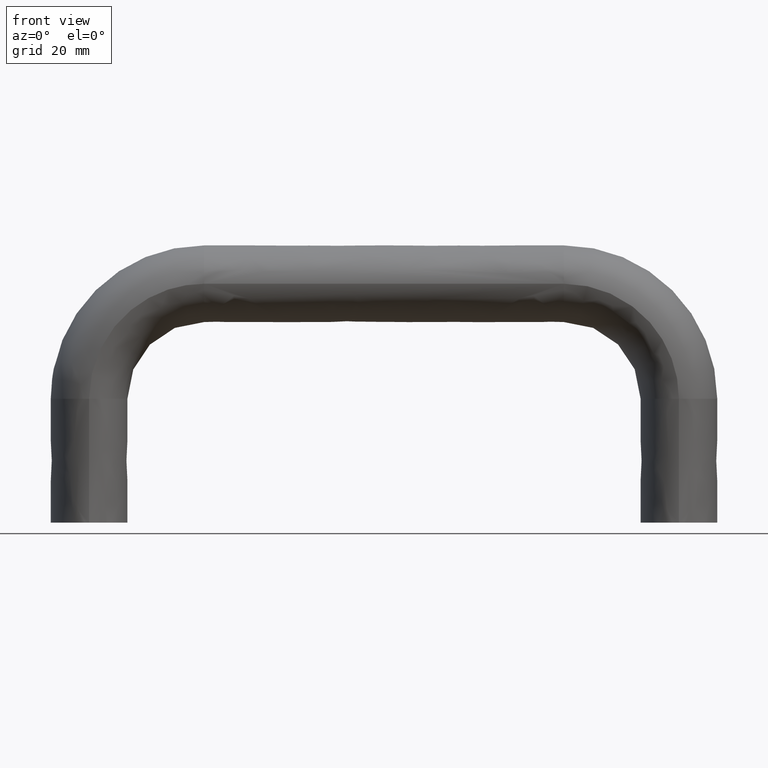
[diagram: clean part render]
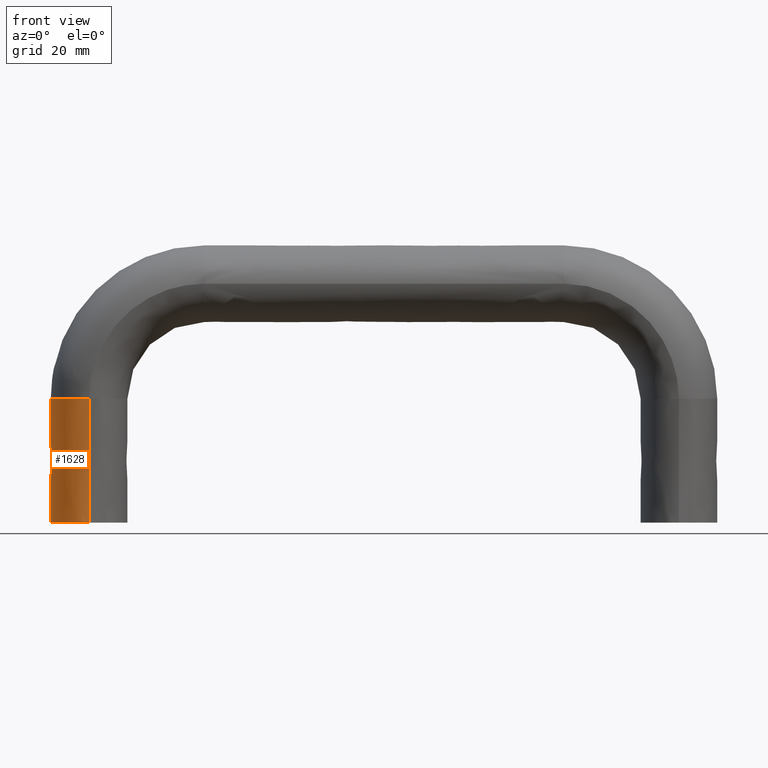
[diagram: same view with one face highlighted and labeled with its STEP entity id]
A machine part, front view. The second image highlights one B-rep face of the part: STEP entity #1628.
In plain terms, the highlighted face is a freeform B-spline surface patch.
Its self-contained STEP definition (entity closure, byte-faithful):
#1406=CARTESIAN_POINT('',(-2.765134615307078,9.039509780698346,21.0));
#1407=VERTEX_POINT('',#1406);
#1415=CARTESIAN_POINT('',(3.747003E-014,-10.0,21.0));
#1416=VERTEX_POINT('',#1415);
#1417=CARTESIAN_POINT('',(-2.765134615307078,9.039509780698346,21.0));
#1418=CARTESIAN_POINT('',(-3.442838944197289,8.550386504931613,21.0));
#1419=CARTESIAN_POINT('',(-4.066750231072831,7.885599694327763,21.0));
#1420=CARTESIAN_POINT('',(-5.799477550144460,5.219866587632820,21.0));
#1421=CARTESIAN_POINT('',(-6.500003000000000,2.617993877991495,21.0));
#1422=CARTESIAN_POINT('',(-6.500003000000000,-2.617993877991495,21.0));
#1423=CARTESIAN_POINT('',(-5.799477550144460,-5.219866587632820,21.0));
#1424=CARTESIAN_POINT('',(-3.392914847921290,-8.922269036098131,21.0));
#1425=CARTESIAN_POINT('',(-1.701696806092625,-10.0,21.0));
#1426=CARTESIAN_POINT('',(0.0,-10.0,21.0));
#1427=B_SPLINE_CURVE_WITH_KNOTS('',3,(#1417,#1418,#1419,#1420,#1421,#1422,#1423,#1424,#1425,#1426),.UNSPECIFIED.,.F.,.U.,(4,2,2,2,4),(0.569999774214178,0.625000000000000,0.750000000000000,0.875000000000000,1.0),.UNSPECIFIED.);
#1428=EDGE_CURVE('',#1407,#1416,#1427,.T.);
#1548=CARTESIAN_POINT('',(-2.685658718488288,9.096870563732853,-0.105000001123984));
#1549=CARTESIAN_POINT('',(-3.393906702951858,8.602100189284771,-0.105000001122971));
#1550=CARTESIAN_POINT('',(-4.046054131709490,7.917441528971149,-0.105000001122064));
#1551=CARTESIAN_POINT('',(-5.799477546771510,5.219866576458202,-0.105000001119699));
#1552=CARTESIAN_POINT('',(-6.500003000000000,2.617993877991495,-0.105000001118792));
#1553=CARTESIAN_POINT('',(-6.500003000000000,-2.617993877991495,-0.105000001118792));
#1554=CARTESIAN_POINT('',(-5.799477550131515,-5.219866585683334,-0.105000001119699));
#1555=CARTESIAN_POINT('',(-3.372218400263375,-8.954109990528842,-0.105000001122973));
#1556=CARTESIAN_POINT('',(-1.643374406696835,-10.036828661669180,-0.105000001125440));
#1557=CARTESIAN_POINT('',(0.087807599338033,-10.0,-0.105000001128085));
#1558=CARTESIAN_POINT('',(-2.685657754870958,9.096870563732857,6.965000230944530));
#1559=CARTESIAN_POINT('',(-3.393905724676816,8.602100189284773,6.965000230875034));
#1560=CARTESIAN_POINT('',(-4.046053140633730,7.917441528971152,6.965000230812847));
#1561=CARTESIAN_POINT('',(-5.799476523060093,5.219866576458202,6.965000230650642));
#1562=CARTESIAN_POINT('',(-6.500001964140381,2.617993877991495,6.965000230588506));
#1563=CARTESIAN_POINT('',(-6.500001964140381,-2.617993877991495,6.965000230588506));
#1564=CARTESIAN_POINT('',(-5.799476526420097,-5.219866585683334,6.965000230650642));
#1565=CARTESIAN_POINT('',(-3.372217421729414,-8.954109990528846,6.965000230875180));
#1566=CARTESIAN_POINT('',(-1.643373463620234,-10.036828661669190,6.965000231044331));
#1567=CARTESIAN_POINT('',(0.087808501942141,-10.0,6.965000231225739));
#1568=CARTESIAN_POINT('',(-2.685755572819079,9.096870563732853,14.035000470715319));
#1569=CARTESIAN_POINT('',(-3.394005030546780,8.602100189284773,14.035000470807329));
#1570=CARTESIAN_POINT('',(-4.046153745919988,7.917441528971149,14.035000470889660));
#1571=CARTESIAN_POINT('',(-5.799580441231025,5.219866576458202,14.035000471104400));
#1572=CARTESIAN_POINT('',(-6.500107115489507,2.617993877991495,14.035000471186640));
#1573=CARTESIAN_POINT('',(-6.500107115489507,-2.617993877991495,14.035000471186640));
#1574=CARTESIAN_POINT('',(-5.799580444591039,-5.219866585683334,14.035000471104400));
#1575=CARTESIAN_POINT('',(-3.372316753882761,-8.954109990528846,14.035000470807130));
#1576=CARTESIAN_POINT('',(-1.643469196454362,-10.036828661669180,14.035000470583199));
#1577=CARTESIAN_POINT('',(0.087716877519140,-10.0,14.035000470343020));
#1578=CARTESIAN_POINT('',(-2.685657287309563,9.096870563732853,21.105000702025439));
#1579=CARTESIAN_POINT('',(-3.393905250003284,8.602100189284771,21.105000702024089));
#1580=CARTESIAN_POINT('',(-4.046052659749096,7.917441528971149,21.105000702022881));
#1581=CARTESIAN_POINT('',(-5.799476026340157,5.219866576458202,21.105000702019730));
#1582=CARTESIAN_POINT('',(-6.500001461525961,2.617993877991495,21.105000702018529));
#1583=CARTESIAN_POINT('',(-6.500001461525961,-2.617993877991495,21.105000702018529));
#1584=CARTESIAN_POINT('',(-5.799476029700161,-5.219866585683334,21.105000702019730));
#1585=CARTESIAN_POINT('',(-3.372216946930247,-8.954109990528842,21.105000702024100));
#1586=CARTESIAN_POINT('',(-1.643373006025505,-10.036828661669180,21.105000702027379));
#1587=CARTESIAN_POINT('',(0.087808939899018,-10.0,21.105000702030900));
#1588=B_SPLINE_SURFACE_WITH_KNOTS('',3,3,((#1548,#1558,#1568,#1578),(#1549,#1559,#1569,#1579),(#1550,#1560,#1570,#1580),(#1551,#1561,#1571,#1581),(#1552,#1562,#1572,#1582),(#1553,#1563,#1573,#1583),(#1554,#1564,#1574,#1584),(#1555,#1565,#1575,#1585),(#1556,#1566,#1576,#1586),(#1557,#1567,#1577,#1587)),.UNSPECIFIED.,.F.,.F.,.U.,(4,2,2,2,4),(4,4),(0.0,3.517538023976559,11.211160203695609,18.904782383414659,26.730734931151531),(0.0,21.210000706909369),.UNSPECIFIED.);
#1589=ORIENTED_EDGE('',*,*,#1428,.F.);
#1590=CARTESIAN_POINT('',(-2.767720169434254,9.043070627223081,0.0));
#1591=VERTEX_POINT('',#1590);
#1592=CARTESIAN_POINT('',(-2.767720169434254,9.043070627223081,0.0));
#1593=CARTESIAN_POINT('',(-2.766858318058806,9.041883678381884,6.999999997749386));
#1594=CARTESIAN_POINT('',(-2.766092040285579,9.040696729539416,14.000000002996630));
#1595=CARTESIAN_POINT('',(-2.765134615307078,9.039509780698346,21.0));
#1596=B_SPLINE_CURVE_WITH_KNOTS('',3,(#1592,#1593,#1594,#1595),.UNSPECIFIED.,.F.,.U.,(4,4),(0.0,0.127845269726248),.UNSPECIFIED.);
#1597=EDGE_CURVE('',#1591,#1407,#1596,.T.);
#1598=ORIENTED_EDGE('',*,*,#1597,.F.);
#1599=CARTESIAN_POINT('',(3.252607E-016,-10.0,0.0));
#1600=VERTEX_POINT('',#1599);
#1601=CARTESIAN_POINT('',(-2.767720169434254,9.043070627223081,0.0));
#1602=CARTESIAN_POINT('',(-3.789576408237041,8.304902884629712,0.0));
#1603=CARTESIAN_POINT('',(-4.593845578071663,7.067814538810093,0.0));
#1604=CARTESIAN_POINT('',(-5.508530793873169,5.660889515444810,0.0));
#1605=CARTESIAN_POINT('',(-6.003271840199859,3.824138428760918,0.0));
#1606=CARTESIAN_POINT('',(-6.498386111927555,1.986001723952242,0.0));
#1607=CARTESIAN_POINT('',(-6.498552654300580,-0.002007286867018,0.0));
#1608=CARTESIAN_POINT('',(-6.498719322310736,-1.991516022564597,0.0));
#1609=CARTESIAN_POINT('',(-6.004286006158745,-3.828126606966662,0.0));
#1610=CARTESIAN_POINT('',(-5.509479696755824,-5.666122703489815,0.0));
#1611=CARTESIAN_POINT('',(-4.595719512415627,-7.071727548910881,0.0));
#1612=CARTESIAN_POINT('',(-3.681270000768123,-8.478392762051858,0.0));
#1613=CARTESIAN_POINT('',(-2.487294653056555,-9.239001272604334,0.0));
#1614=CARTESIAN_POINT('',(-1.292964819976039,-9.999835604057592,0.0));
#1615=CARTESIAN_POINT('',(3.252607E-016,-10.0,0.0));
#1616=B_SPLINE_CURVE_WITH_KNOTS('',2,(#1601,#1602,#1603,#1604,#1605,#1606,#1607,#1608,#1609,#1610,#1611,#1612,#1613,#1614,#1615),.UNSPECIFIED.,.F.,.U.,(3,2,2,2,2,2,2,3),(0.140006435435435,0.250000000000000,0.375000000000000,0.500000000000000,0.625000000000000,0.750000000000000,0.875000000000000,1.0),.UNSPECIFIED.);
#1617=EDGE_CURVE('',#1591,#1600,#1616,.T.);
#1618=ORIENTED_EDGE('',*,*,#1617,.T.);
#1619=CARTESIAN_POINT('',(0.0,-10.0,0.0));
#1620=CARTESIAN_POINT('',(0.0,-10.0,6.999999998021430));
#1621=CARTESIAN_POINT('',(-0.000089572575352,-10.0,14.000000002634399));
#1622=CARTESIAN_POINT('',(0.0,-10.0,21.0));
#1623=B_SPLINE_CURVE_WITH_KNOTS('',3,(#1619,#1620,#1621,#1622),.UNSPECIFIED.,.F.,.U.,(4,4),(0.0,0.127845269726248),.UNSPECIFIED.);
#1624=EDGE_CURVE('',#1600,#1416,#1623,.T.);
#1625=ORIENTED_EDGE('',*,*,#1624,.T.);
#1626=EDGE_LOOP('',(#1589,#1598,#1618,#1625));
#1627=FACE_OUTER_BOUND('',#1626,.T.);
#1628=ADVANCED_FACE('',(#1627),#1588,.T.);